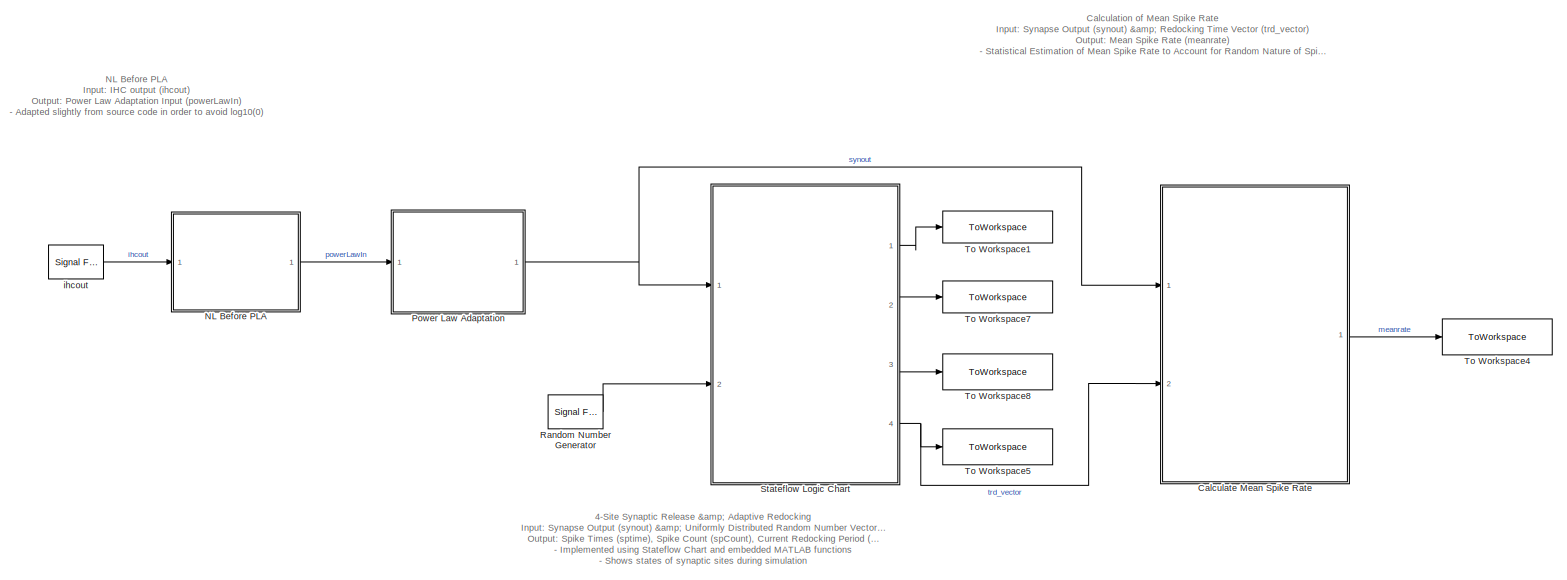
[diagram: root canvas - part 1/1, most of the canvas]
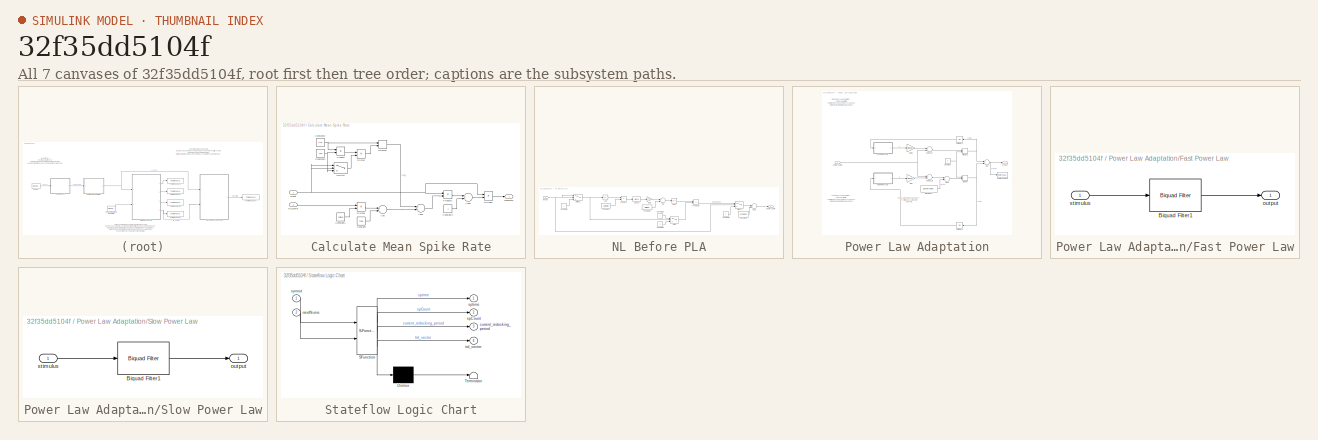
[diagram: thumbnail index - all 7 canvases of the model, root first then tree order]
MODEL slx_32f35dd5104f
KIND model
CONFIG AbsTol = auto
CONFIG EnableMultiTasking = off
CONFIG FixedStep = auto
CONFIG InitFcn = Synapse_Test_Parameters
CONFIG MaxStep = auto
CONFIG MinStep = auto
CONFIG RelTol = 1e-3
CONFIG SampleTimeConstraint = Unconstrained
CONFIG Solver = VariableStepAuto
CONFIG SolverName = VariableStepAuto
CONFIG StartTime = 0.0
CONFIG StopFcn = Verify_Synapse
CONFIG StopTime = testtime
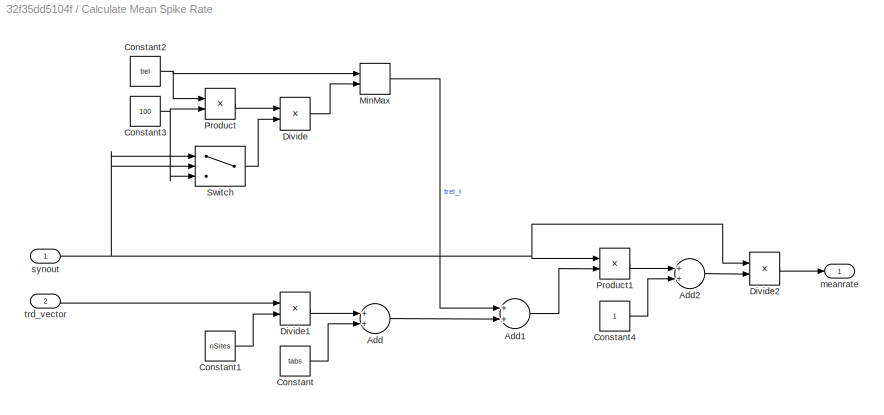
BLOCK [SubSystem] Calculate Mean Spike Rate
  Ports = [2, 1]
  RequestExecContextInheritance = off
  ShowPortLabels = none
BLOCK [Sum] Calculate Mean Spike Rate/Add
  InputSameDT = off
  OutDataTypeStr = Inherit: Inherit via internal rule
  Ports = [2, 1]
  SaturateOnIntegerOverflow = off
BLOCK [Sum] Calculate Mean Spike Rate/Add1
  InputSameDT = off
  OutDataTypeStr = Inherit: Inherit via internal rule
  Ports = [2, 1]
  SaturateOnIntegerOverflow = off
BLOCK [Sum] Calculate Mean Spike Rate/Add2
  InputSameDT = off
  OutDataTypeStr = Inherit: Inherit via internal rule
  Ports = [2, 1]
  SaturateOnIntegerOverflow = off
BLOCK [Constant] Calculate Mean Spike Rate/Constant
  SampleTime = -1
  Value = tabs
BLOCK [Constant] Calculate Mean Spike Rate/Constant1
  SampleTime = -1
  Value = nSites
BLOCK [Constant] Calculate Mean Spike Rate/Constant2
  SampleTime = -1
  Value = trel
BLOCK [Constant] Calculate Mean Spike Rate/Constant3
  SampleTime = -1
  Value = 100
BLOCK [Constant] Calculate Mean Spike Rate/Constant4
  SampleTime = -1
BLOCK [Product] Calculate Mean Spike Rate/Divide
  InputSameDT = off
  Inputs = */
  OutDataTypeStr = Inherit: Inherit via internal rule
  Ports = [2, 1]
BLOCK [Product] Calculate Mean Spike Rate/Divide1
  InputSameDT = off
  Inputs = */
  OutDataTypeStr = Inherit: Inherit via internal rule
  Ports = [2, 1]
BLOCK [Product] Calculate Mean Spike Rate/Divide2
  InputSameDT = off
  Inputs = */
  OutDataTypeStr = Inherit: Inherit via internal rule
  Ports = [2, 1]
BLOCK [MinMax] Calculate Mean Spike Rate/MinMax
  InputSameDT = off
  Inputs = 2
  Ports = [2, 1]
  SaturateOnIntegerOverflow = off
BLOCK [Product] Calculate Mean Spike Rate/Product
  InputSameDT = off
  OutDataTypeStr = Inherit: Inherit via internal rule
  Ports = [2, 1]
  RndMeth = Floor
  SaturateOnIntegerOverflow = off
BLOCK [Product] Calculate Mean Spike Rate/Product1
  InputSameDT = off
  OutDataTypeStr = Inherit: Inherit via internal rule
  Ports = [2, 1]
  RndMeth = Floor
  SaturateOnIntegerOverflow = off
BLOCK [Switch] Calculate Mean Spike Rate/Switch
  Criteria = u2 > Threshold
  InputSameDT = off
  SaturateOnIntegerOverflow = off
BLOCK [Outport] Calculate Mean Spike Rate/meanrate
  IconDisplay = Port number
BLOCK [Inport] Calculate Mean Spike Rate/synout
  IconDisplay = Port number
BLOCK [Inport] Calculate Mean Spike Rate/trd_vector
  IconDisplay = Port number
  Port = 2
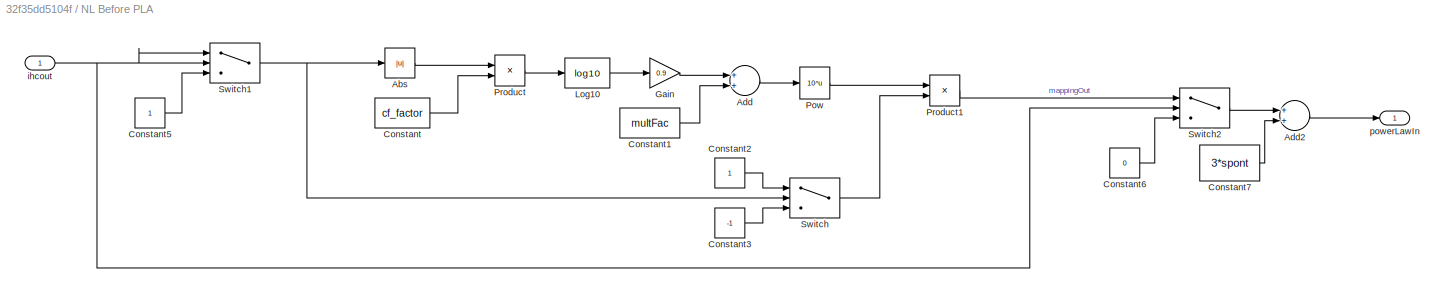
BLOCK [SubSystem] NL Before PLA
  Ports = [1, 1]
  RequestExecContextInheritance = off
  ShowPortLabels = none
BLOCK [Abs] NL Before PLA/Abs
  SaturateOnIntegerOverflow = off
BLOCK [Sum] NL Before PLA/Add
  InputSameDT = off
  OutDataTypeStr = Inherit: Inherit via internal rule
  Ports = [2, 1]
  SaturateOnIntegerOverflow = off
BLOCK [Sum] NL Before PLA/Add2
  InputSameDT = off
  OutDataTypeStr = Inherit: Inherit via internal rule
  Ports = [2, 1]
  SaturateOnIntegerOverflow = off
BLOCK [Constant] NL Before PLA/Constant
  SampleTime = -1
  Value = cf_factor
BLOCK [Constant] NL Before PLA/Constant1
  SampleTime = -1
  Value = multFac
BLOCK [Constant] NL Before PLA/Constant2
  SampleTime = -1
BLOCK [Constant] NL Before PLA/Constant3
  SampleTime = -1
  Value = -1
BLOCK [Constant] NL Before PLA/Constant5
  SampleTime = -1
BLOCK [Constant] NL Before PLA/Constant6
  SampleTime = -1
  Value = 0
BLOCK [Constant] NL Before PLA/Constant7
  SampleTime = -1
  Value = 3*spont
BLOCK [Gain] NL Before PLA/Gain
  Gain = 0.9
  OutDataTypeStr = Inherit: Inherit via internal rule
  ParamDataTypeStr = Inherit: Inherit via internal rule
  SaturateOnIntegerOverflow = off
BLOCK [Math] NL Before PLA/Log10
  Operator = log10
  Ports = [1, 1]
  RndMeth = Zero
BLOCK [Math] NL Before PLA/Pow
  Operator = 10^u
  Ports = [1, 1]
  RndMeth = Zero
BLOCK [Product] NL Before PLA/Product
  InputSameDT = off
  OutDataTypeStr = Inherit: Inherit via internal rule
  Ports = [2, 1]
  RndMeth = Floor
  SaturateOnIntegerOverflow = off
BLOCK [Product] NL Before PLA/Product1
  InputSameDT = off
  OutDataTypeStr = Inherit: Inherit via internal rule
  Ports = [2, 1]
  RndMeth = Floor
  SaturateOnIntegerOverflow = off
BLOCK [Switch] NL Before PLA/Switch
  InputSameDT = off
  SaturateOnIntegerOverflow = off
BLOCK [Switch] NL Before PLA/Switch1
  Criteria = u2 ~= 0
  InputSameDT = off
  SaturateOnIntegerOverflow = off
BLOCK [Switch] NL Before PLA/Switch2
  Criteria = u2 ~= 0
  InputSameDT = off
  SaturateOnIntegerOverflow = off
BLOCK [Inport] NL Before PLA/ihcout
  IconDisplay = Port number
BLOCK [Outport] NL Before PLA/powerLawIn
  IconDisplay = Port number
BLOCK [SubSystem] Power Law Adaptation
  Ports = [1, 1]
  RequestExecContextInheritance = off
  ShowPortLabels = none
BLOCK [Sum] Power Law Adaptation/Add
  InputSameDT = off
  OutDataTypeStr = Inherit: Inherit via internal rule
  Ports = [2, 1]
  SaturateOnIntegerOverflow = off
BLOCK [Sum] Power Law Adaptation/Add1
  InputSameDT = off
  OutDataTypeStr = Inherit: Inherit via internal rule
  Ports = [2, 1]
  SaturateOnIntegerOverflow = off
BLOCK [Constant] Power Law Adaptation/Constant
  SampleTime = -1
  Value = 0
BLOCK [SubSystem] Power Law Adaptation/Fast Power Law
  Ports = [1, 1]
  RequestExecContextInheritance = off
  ShowPortLabels = none
BLOCK [Reference] Power Law Adaptation/Fast Power Law/Biquad Filter1  REF=dsparch4/Biquad Filter
  Ports = [1, 1]
  SourceBlock = dsparch4/Biquad Filter
  SourceProductBaseCode = DS
  SourceProductName = DSP System Toolbox
  SourceType = Biquad Filter
  UserDataPersistent = on
BLOCK [Outport] Power Law Adaptation/Fast Power Law/output
  IconDisplay = Port number
BLOCK [Inport] Power Law Adaptation/Fast Power Law/stimulus
  IconDisplay = Port number
BLOCK [Gain] Power Law Adaptation/Gain
  Gain = alpha1
  OutDataTypeStr = Inherit: Inherit via internal rule
  ParamDataTypeStr = Inherit: Inherit via internal rule
  SaturateOnIntegerOverflow = off
BLOCK [Gain] Power Law Adaptation/Gain1
  Gain = alpha2
  OutDataTypeStr = Inherit: Inherit via internal rule
  ParamDataTypeStr = Inherit: Inherit via internal rule
  SaturateOnIntegerOverflow = off
BLOCK [MinMax] Power Law Adaptation/MinMax
  Function = max
  InputSameDT = off
  Inputs = 2
  Ports = [2, 1]
  SaturateOnIntegerOverflow = off
BLOCK [MinMax] Power Law Adaptation/MinMax1
  Function = max
  InputSameDT = off
  Inputs = 2
  Ports = [2, 1]
  SaturateOnIntegerOverflow = off
BLOCK [SubSystem] Power Law Adaptation/Slow Power Law
  Ports = [1, 1]
  RequestExecContextInheritance = off
  ShowPortLabels = none
BLOCK [Reference] Power Law Adaptation/Slow Power Law/Biquad Filter1  REF=dsparch4/Biquad Filter
  Ports = [1, 1]
  SourceBlock = dsparch4/Biquad Filter
  SourceProductBaseCode = DS
  SourceProductName = DSP System Toolbox
  SourceType = Biquad Filter
  UserDataPersistent = on
BLOCK [Outport] Power Law Adaptation/Slow Power Law/output
  IconDisplay = Port number
BLOCK [Inport] Power Law Adaptation/Slow Power Law/stimulus
  IconDisplay = Port number
BLOCK [Sum] Power Law Adaptation/Subtract
  InputSameDT = off
  Inputs = -+
  OutDataTypeStr = Inherit: Inherit via internal rule
  Ports = [2, 1]
  SaturateOnIntegerOverflow = off
BLOCK [Sum] Power Law Adaptation/Subtract1
  InputSameDT = off
  Inputs = +-
  OutDataTypeStr = Inherit: Inherit via internal rule
  Ports = [2, 1]
  SaturateOnIntegerOverflow = off
BLOCK [ToWorkspace] Power Law Adaptation/To Workspace
  MaxDataPoints = inf
  Ports = [1]
  SampleTime = -1
  Save2DSignal = 2-D array (concatenate along first dimension)
  VariableName = synout
BLOCK [UnitDelay] Power Law Adaptation/Unit Delay1
  HasFrameUpgradeWarning = on
  SampleTime = -1
BLOCK [UnitDelay] Power Law Adaptation/Unit Delay2
  HasFrameUpgradeWarning = on
  SampleTime = -1
BLOCK [Reference] Power Law Adaptation/ffGn Signal  REF=dspsrcs4/Signal From
Workspace
  Ports = [0, 1]
  SourceBlock = dspsrcs4/Signal From\nWorkspace
  SourceProductBaseCode = DS
  SourceProductName = DSP System Toolbox
  SourceType = Signal From Workspace
BLOCK [Inport] Power Law Adaptation/powerLawIn
  IconDisplay = Port number
BLOCK [Outport] Power Law Adaptation/synout
  IconDisplay = Port number
BLOCK [Reference] Random Number Generator  REF=dspsrcs4/Signal From
Workspace
  Ports = [0, 1]
  SourceBlock = dspsrcs4/Signal From\nWorkspace
  SourceProductBaseCode = DS
  SourceProductName = DSP System Toolbox
  SourceType = Signal From Workspace
BLOCK [SubSystem] Stateflow Logic Chart
  BlockKeywords = __PRM__SERIALIZED__DATA__:Stateflow Chart,Stateflow Diagram
  ErrorFcn = Stateflow.Translate.translate
  PermitHierarchicalResolution = ExplicitOnly
  Ports = [2, 4]
  RequestExecContextInheritance = off
  SFBlockType = Chart
  ShowPortLabels = none
  TreatAsAtomicUnit = on
BLOCK [Demux] Stateflow Logic Chart/ Demux 
  Outputs = 1
  Ports = [1, 1]
BLOCK [S-Function] Stateflow Logic Chart/ SFunction 
  EnableBusSupport = on
  FunctionName = sf_sfun
  Parameters = Xsum1,Xsum2,Xsum3,Xsum4,current_redocking_period,elapsed_time1,elapsed_time2,elapsed_time3,elapsed_time4,oneSiteRedock1,oneSiteRedock2,oneSiteRedock3,oneSiteRedock4,previous_redocking_period,refractory_time,spCount,sptime,t_rd_jump,t_rd_rest,tabs,tau,tdres,trd_vector,trel,unitRateInterval1,unitRateInterval2,unitRateInterval3,unitRateInterval4
  PortCounts = [2 5]
  Ports = [2, 5]
  SFcnIsStateOwnerBlock = off
  SFunctionDeploymentMode = off
  Tag = Stateflow S-Function Synapse 4
BLOCK [Terminator] Stateflow Logic Chart/ Terminator 
BLOCK [Outport] Stateflow Logic Chart/current_redocking_period
  IconDisplay = Port number
  Port = 3
BLOCK [Inport] Stateflow Logic Chart/randNums
  IconDisplay = Port number
  Port = 2
BLOCK [Outport] Stateflow Logic Chart/spCount
  IconDisplay = Port number
  Port = 2
BLOCK [Outport] Stateflow Logic Chart/sptime
  IconDisplay = Port number
BLOCK [Inport] Stateflow Logic Chart/synout
  IconDisplay = Port number
BLOCK [Outport] Stateflow Logic Chart/trd_vector
  IconDisplay = Port number
  Port = 4
BLOCK [ToWorkspace] To Workspace1
  MaxDataPoints = inf
  Ports = [1]
  SampleTime = -1
  Save2DSignal = 2-D array (concatenate along first dimension)
  VariableName = sptime
BLOCK [ToWorkspace] To Workspace4
  MaxDataPoints = inf
  Ports = [1]
  SampleTime = -1
  Save2DSignal = 2-D array (concatenate along first dimension)
  VariableName = meanrate
BLOCK [ToWorkspace] To Workspace5
  MaxDataPoints = inf
  Ports = [1]
  SampleTime = -1
  Save2DSignal = 2-D array (concatenate along first dimension)
  VariableName = trd_vector
BLOCK [ToWorkspace] To Workspace7
  MaxDataPoints = inf
  Ports = [1]
  SampleTime = -1
  Save2DSignal = 2-D array (concatenate along first dimension)
  VariableName = spCount
BLOCK [ToWorkspace] To Workspace8
  MaxDataPoints = inf
  Ports = [1]
  SampleTime = -1
  Save2DSignal = 2-D array (concatenate along first dimension)
  VariableName = current_redocking_period
BLOCK [Reference] ihcout  REF=dspsrcs4/Signal From
Workspace
  Ports = [0, 1]
  SourceBlock = dspsrcs4/Signal From\nWorkspace
  SourceProductBaseCode = DS
  SourceProductName = DSP System Toolbox
  SourceType = Signal From Workspace
ANNOTATION (root): 4-Site Synaptic Release & Adaptive Redocking Input : Synapse Output (synout) & Uniformly Distributed Random Number Vector between 0 and 1 (randNums) Output : Spike Times (sptime), Spike Count (spCount), Current Redocking Period (current_redocking_period), & Redocking Time Vector (trd_vector) - Implemented using Stateflow Chart and embedded MATLAB functions - Shows states of synaptic sites during s...<+9ch>
ANNOTATION (root): Calculation of Mean Spike Rate Input : Synapse Output (synout) & Redocking Time Vector (trd_vector) Output : Mean Spike Rate (meanrate) - Statistical Estimation of Mean Spike Rate to Account for Random Nature of Spike Generation Process
ANNOTATION (root): NL Before PLA Input : IHC output (ihcout) Output : Power Law Adaptation Input (powerLawIn) - Adapted slightly from source code in order to avoid log10(0)
ANNOTATION Power Law Adaptation: Fast Fractional Gaussian Noise: - From ffGn MATLAB function - Mean of 0
ANNOTATION Power Law Adaptation: Fast Power Law Adaptation: - 6th Order IIR Filter - Coefficients are derived for Fs = 100kHz! - Implemented w/ Simulink biquad block
ANNOTATION Power Law Adaptation: Slow Power Law Adaptation: - 10th Order IIR Filter - Coefficients are derived for Fs = 100kHz! - Implemented w/ Simulink biquad block
LINE Calculate Mean Spike Rate/Add1:1 -> Calculate Mean Spike Rate/Product1:2
LINE Calculate Mean Spike Rate/Add2:1 -> Calculate Mean Spike Rate/Divide2:2
LINE Calculate Mean Spike Rate/Add:1 -> Calculate Mean Spike Rate/Add1:2
LINE Calculate Mean Spike Rate/Constant1:1 -> Calculate Mean Spike Rate/Divide1:2
NET Calculate Mean Spike Rate/Constant2:1 -> Calculate Mean Spike Rate/MinMax:1, Calculate Mean Spike Rate/Product:1
NET Calculate Mean Spike Rate/Constant3:1 -> Calculate Mean Spike Rate/Product:2, Calculate Mean Spike Rate/Switch:3
LINE Calculate Mean Spike Rate/Constant4:1 -> Calculate Mean Spike Rate/Add2:2
LINE Calculate Mean Spike Rate/Constant:1 -> Calculate Mean Spike Rate/Add:2
LINE Calculate Mean Spike Rate/Divide1:1 -> Calculate Mean Spike Rate/Add:1
LINE Calculate Mean Spike Rate/Divide2:1 -> Calculate Mean Spike Rate/meanrate:1
LINE Calculate Mean Spike Rate/Divide:1 -> Calculate Mean Spike Rate/MinMax:2
LINE Calculate Mean Spike Rate/MinMax:1 -> Calculate Mean Spike Rate/Add1:1
LINE Calculate Mean Spike Rate/Product1:1 -> Calculate Mean Spike Rate/Add2:1
LINE Calculate Mean Spike Rate/Product:1 -> Calculate Mean Spike Rate/Divide:1
LINE Calculate Mean Spike Rate/Switch:1 -> Calculate Mean Spike Rate/Divide:2
NET Calculate Mean Spike Rate/synout:1 -> Calculate Mean Spike Rate/Divide2:1, Calculate Mean Spike Rate/Product1:1, Calculate Mean Spike Rate/Switch:1, Calculate Mean Spike Rate/Switch:2
LINE Calculate Mean Spike Rate/trd_vector:1 -> Calculate Mean Spike Rate/Divide1:1
LINE Calculate Mean Spike Rate:1 -> To Workspace4:1
LINE NL Before PLA/Abs:1 -> NL Before PLA/Product:1
LINE NL Before PLA/Add2:1 -> NL Before PLA/powerLawIn:1
LINE NL Before PLA/Add:1 -> NL Before PLA/Pow:1
LINE NL Before PLA/Constant1:1 -> NL Before PLA/Add:2
LINE NL Before PLA/Constant2:1 -> NL Before PLA/Switch:1
LINE NL Before PLA/Constant3:1 -> NL Before PLA/Switch:3
LINE NL Before PLA/Constant5:1 -> NL Before PLA/Switch1:3
LINE NL Before PLA/Constant6:1 -> NL Before PLA/Switch2:3
LINE NL Before PLA/Constant7:1 -> NL Before PLA/Add2:2
LINE NL Before PLA/Constant:1 -> NL Before PLA/Product:2
LINE NL Before PLA/Gain:1 -> NL Before PLA/Add:1
LINE NL Before PLA/Log10:1 -> NL Before PLA/Gain:1
LINE NL Before PLA/Pow:1 -> NL Before PLA/Product1:1
LINE NL Before PLA/Product1:1 -> NL Before PLA/Switch2:1
LINE NL Before PLA/Product:1 -> NL Before PLA/Log10:1
NET NL Before PLA/Switch1:1 -> NL Before PLA/Abs:1, NL Before PLA/Switch:2
LINE NL Before PLA/Switch2:1 -> NL Before PLA/Add2:1
LINE NL Before PLA/Switch:1 -> NL Before PLA/Product1:2
NET NL Before PLA/ihcout:1 -> NL Before PLA/Switch1:1, NL Before PLA/Switch1:2, NL Before PLA/Switch2:2
LINE NL Before PLA:1 -> Power Law Adaptation:1
LINE Power Law Adaptation/Add1:1 -> Power Law Adaptation/MinMax:2
NET Power Law Adaptation/Add:1 -> Power Law Adaptation/To Workspace:1, Power Law Adaptation/synout:1
NET Power Law Adaptation/Constant:1 -> Power Law Adaptation/MinMax1:2, Power Law Adaptation/MinMax:1
LINE Power Law Adaptation/Fast Power Law/Biquad Filter1:1 -> Power Law Adaptation/Fast Power Law/output:1
LINE Power Law Adaptation/Fast Power Law/stimulus:1 -> Power Law Adaptation/Fast Power Law/Biquad Filter1:1
LINE Power Law Adaptation/Fast Power Law:1 -> Power Law Adaptation/Gain1:1
LINE Power Law Adaptation/Gain1:1 -> Power Law Adaptation/Subtract:1
LINE Power Law Adaptation/Gain:1 -> Power Law Adaptation/Subtract1:2
NET Power Law Adaptation/MinMax1:1 -> Power Law Adaptation/Add:1, Power Law Adaptation/Unit Delay2:1
NET Power Law Adaptation/MinMax:1 -> Power Law Adaptation/Add:2, Power Law Adaptation/Unit Delay1:1
LINE Power Law Adaptation/Slow Power Law/Biquad Filter1:1 -> Power Law Adaptation/Slow Power Law/output:1
LINE Power Law Adaptation/Slow Power Law/stimulus:1 -> Power Law Adaptation/Slow Power Law/Biquad Filter1:1
LINE Power Law Adaptation/Slow Power Law:1 -> Power Law Adaptation/Gain:1
LINE Power Law Adaptation/Subtract1:1 -> Power Law Adaptation/Add1:1
LINE Power Law Adaptation/Subtract:1 -> Power Law Adaptation/MinMax1:1
LINE Power Law Adaptation/Unit Delay1:1 -> Power Law Adaptation/Slow Power Law:1
LINE Power Law Adaptation/Unit Delay2:1 -> Power Law Adaptation/Fast Power Law:1
LINE Power Law Adaptation/ffGn Signal:1 -> Power Law Adaptation/Add1:2
NET Power Law Adaptation/powerLawIn:1 -> Power Law Adaptation/Subtract1:1, Power Law Adaptation/Subtract:2
NET Power Law Adaptation:1 -> Calculate Mean Spike Rate:1, Stateflow Logic Chart:1
LINE Random Number Generator:1 -> Stateflow Logic Chart:2
LINE Stateflow Logic Chart:1 -> To Workspace1:1
LINE Stateflow Logic Chart:2 -> To Workspace7:1
LINE Stateflow Logic Chart:3 -> To Workspace8:1
NET Stateflow Logic Chart:4 -> Calculate Mean Spike Rate:2, To Workspace5:1
LINE ihcout:1 -> NL Before PLA:1
note: NET lines group one-source signal fan-out (src -> all destinations, sorted); 1:1 wires keep LINE
CHART Stateflow Logic Chart states=56 transitions=36
  STATE_LABEL '<!DOCTYPE HTML PUBLIC "-//W3C//DTD HTML 4.0//EN" "http://www.w3.org/TR/REC-html40/strict.dtd">\n<html><head><meta name="qrichtext" content="1" /><style type="text/css">\np, li { white-space: pre-wrap; }\n</style></head><body style=" font-family:\'Helvetica\'; font-size:12px; font-weight:400; font-style:normal;">\n<p style=" margin-top:0px; margin-bottom:0px; margin-left:0px; margin-right:0px; -qt-block-...<+609ch>'  <repeated x4 — deduplicated; at blocks: Stateflow Logic Chart>
  STATE_LABEL '<!DOCTYPE HTML PUBLIC "-//W3C//DTD HTML 4.0//EN" "http://www.w3.org/TR/REC-html40/strict.dtd">\n<html><head><meta name="qrichtext" content="1" /><style type="text/css">\np, li { white-space: pre-wrap; }\n</style></head><body style=" font-family:\'Helvetica\'; font-size:12px; font-weight:400; font-style:normal;">\n<p style=" margin-top:0px; margin-bottom:0px; margin-left:0px; margin-right:0px; -qt-block-...<+623ch>'
  STATE_LABEL '<!DOCTYPE HTML PUBLIC "-//W3C//DTD HTML 4.0//EN" "http://www.w3.org/TR/REC-html40/strict.dtd">\n<html><head><meta name="qrichtext" content="1" /><style type="text/css">\np, li { white-space: pre-wrap; }\n</style></head><body style=" font-family:\'Helvetica\'; font-size:12px; font-weight:400; font-style:normal;">\n<p style=" margin-top:0px; margin-bottom:0px; margin-left:0px; margin-right:0px; -qt-block-...<+612ch>'
  STATE_LABEL 'SynapticSite1'
  STATE_LABEL '<!DOCTYPE HTML PUBLIC "-//W3C//DTD HTML 4.0//EN" "http://www.w3.org/TR/REC-html40/strict.dtd">\n<html><head><meta name="qrichtext" content="1" /><style type="text/css">\np, li { white-space: pre-wrap; }\n</style></head><body style=" font-family:\'Helvetica\'; font-size:12px; font-weight:400; font-style:normal;">\n<p style=" margin-top:0px; margin-bottom:0px; margin-left:0px; margin-right:0px; -qt-block-...<+143ch>'  <repeated x5 — deduplicated; at blocks: Stateflow Logic Chart>
  STATE_LABEL '<!DOCTYPE HTML PUBLIC "-//W3C//DTD HTML 4.0//EN" "http://www.w3.org/TR/REC-html40/strict.dtd">\n<html><head><meta name="qrichtext" content="1" /><style type="text/css">\np, li { white-space: pre-wrap; }\n</style></head><body style=" font-family:\'Helvetica\'; font-size:12px; font-weight:400; font-style:normal;">\n<p style=" margin-top:0px; margin-bottom:0px; margin-left:0px; margin-right:0px; -qt-block-...<+149ch>'  <repeated x5 — deduplicated; at blocks: Stateflow Logic Chart>
  STATE_LABEL '<!DOCTYPE HTML PUBLIC "-//W3C//DTD HTML 4.0//EN" "http://www.w3.org/TR/REC-html40/strict.dtd">\n<html><head><meta name="qrichtext" content="1" /><style type="text/css">\np, li { white-space: pre-wrap; }\n</style></head><body style=" font-family:\'Helvetica\'; font-size:12px; font-weight:400; font-style:normal;">\n<p style=" margin-top:0px; margin-bottom:0px; margin-left:0px; margin-right:0px; -qt-block-...<+134ch>'  <repeated x5 — deduplicated; at blocks: Stateflow Logic Chart>
  STATE_LABEL 'SenseInput\nentry:\n redockStatus1 = 0;\n Xsum1 = Xsum1 + synout/4;\n releaseStatus1 = checkRelease(Xsum1, unitRateInterval1);\nduring:\n Xsum1 = Xsum1 + synout/4;\n releaseStatus1 = checkRelease(Xsum1, unitRateInterval1);\nexit:\n oneSiteRedock1 = getNewRedock(current_redocking_period, randNums);\n Xsum1= 0;\n unitRateInterval1 = getNewUnitRateInterval(randNums);'
  STATE_LABEL 'RedockPeriod\nentry:\n elapsed_time1 = 0;\n redockStatus1 = checkRedock(elapsed_time1, oneSiteRedock1);\n elapsed_time1  = elapsed_time1 + tdres;\n releaseStatus1 = 0;\nduring:\n redockStatus1 = checkRedock(elapsed_time1, oneSiteRedock1);\n elapsed_time1 = elapsed_time1 + tdres;\nexit:\n elapsed_time1 = 0;\n current_redocking_period = previous_redocking_period + t_rd_jump;\n previous_redocking_period = curren...<+20ch>'
  STATE_LABEL '[releaseStatus1 == 1]'
  STATE_LABEL '[redockStatus1 == 1]'
  STATE_LABEL 'SenseInput\nentry:\n redockStatus1 = 0;\n Xsum1 = Xsum1 + synout/4;\n releaseStatus1 = checkRelease(Xsum1, unitRateInterval1);\nduring:\n Xsum1 = Xsum1 + synout/4;\n releaseStatus1 = checkRelease(Xsum1, unitRateInterval1);\nexit:\n oneSiteRedock1 = getNewRedock(current_redocking_period, randNums);\n Xsum1= 0;\n unitRateInterval1 = getNewUnitRateInterval(randNums);'
  STATE_LABEL 'RedockPeriod\nentry:\n elapsed_time1 = 0;\n redockStatus1 = checkRedock(elapsed_time1, oneSiteRedock1);\n elapsed_time1  = elapsed_time1 + tdres;\n releaseStatus1 = 0;\nduring:\n redockStatus1 = checkRedock(elapsed_time1, oneSiteRedock1);\n elapsed_time1 = elapsed_time1 + tdres;\nexit:\n elapsed_time1 = 0;\n current_redocking_period = previous_redocking_period + t_rd_jump;\n previous_redocking_period = curren...<+20ch>'
  STATE_LABEL 'SynapticSite2'
  STATE_LABEL 'SenseInput\nentry:\n redockStatus2 = 0;\n Xsum2 = Xsum2 + synout/4;\n releaseStatus2 = checkRelease(Xsum2, unitRateInterval2);\nduring:\n Xsum2 = Xsum2 + synout/4;\n releaseStatus2 = checkRelease(Xsum2, unitRateInterval2);\nexit:\n oneSiteRedock2 = getNewRedock(current_redocking_period, randNums);\n Xsum2= 0;\n unitRateInterval2 = getNewUnitRateInterval(randNums);'
  STATE_LABEL 'RedockPeriod\nentry:\n elapsed_time2 = 0;\n redockStatus2 = checkRedock(elapsed_time2, oneSiteRedock2);\n elapsed_time2  = elapsed_time2 + tdres;\n releaseStatus2 = 0;\nduring:\n redockStatus2 = checkRedock(elapsed_time2, oneSiteRedock2);\n elapsed_time2 = elapsed_time2 + tdres;\nexit:\n elapsed_time2 = 0;\n current_redocking_period = previous_redocking_period + t_rd_jump;\n previous_redocking_period = curren...<+20ch>'
  STATE_LABEL '[releaseStatus2 == 1]'
  STATE_LABEL '[redockStatus2 == 1]'
  STATE_LABEL 'SenseInput\nentry:\n redockStatus2 = 0;\n Xsum2 = Xsum2 + synout/4;\n releaseStatus2 = checkRelease(Xsum2, unitRateInterval2);\nduring:\n Xsum2 = Xsum2 + synout/4;\n releaseStatus2 = checkRelease(Xsum2, unitRateInterval2);\nexit:\n oneSiteRedock2 = getNewRedock(current_redocking_period, randNums);\n Xsum2= 0;\n unitRateInterval2 = getNewUnitRateInterval(randNums);'
  STATE_LABEL 'RedockPeriod\nentry:\n elapsed_time2 = 0;\n redockStatus2 = checkRedock(elapsed_time2, oneSiteRedock2);\n elapsed_time2  = elapsed_time2 + tdres;\n releaseStatus2 = 0;\nduring:\n redockStatus2 = checkRedock(elapsed_time2, oneSiteRedock2);\n elapsed_time2 = elapsed_time2 + tdres;\nexit:\n elapsed_time2 = 0;\n current_redocking_period = previous_redocking_period + t_rd_jump;\n previous_redocking_period = curren...<+20ch>'
  STATE_LABEL 'SynapticSite3'
  STATE_LABEL 'SenseInput\nentry:\n redockStatus3 = 0;\n Xsum3 = Xsum3 + synout/4;\n releaseStatus3 = checkRelease(Xsum3, unitRateInterval3);\nduring:\n Xsum3 = Xsum3 + synout/4;\n releaseStatus3 = checkRelease(Xsum3, unitRateInterval3);\nexit:\n oneSiteRedock3 = getNewRedock(current_redocking_period, randNums);\n Xsum3= 0;\n unitRateInterval3 = getNewUnitRateInterval(randNums);'
  STATE_LABEL 'RedockPeriod\nentry:\n elapsed_time3 = 0;\n redockStatus3 = checkRedock(elapsed_time3, oneSiteRedock3);\n elapsed_time3  = elapsed_time3 + tdres;\n releaseStatus3 = 0;\nduring:\n redockStatus3 = checkRedock(elapsed_time3, oneSiteRedock3);\n elapsed_time3 = elapsed_time3 + tdres;\nexit:\n elapsed_time3 = 0;\n current_redocking_period = previous_redocking_period + t_rd_jump;\n previous_redocking_period = curren...<+20ch>'
  STATE_LABEL '[releaseStatus3 == 1]'
  STATE_LABEL '[redockStatus3 == 1]'
